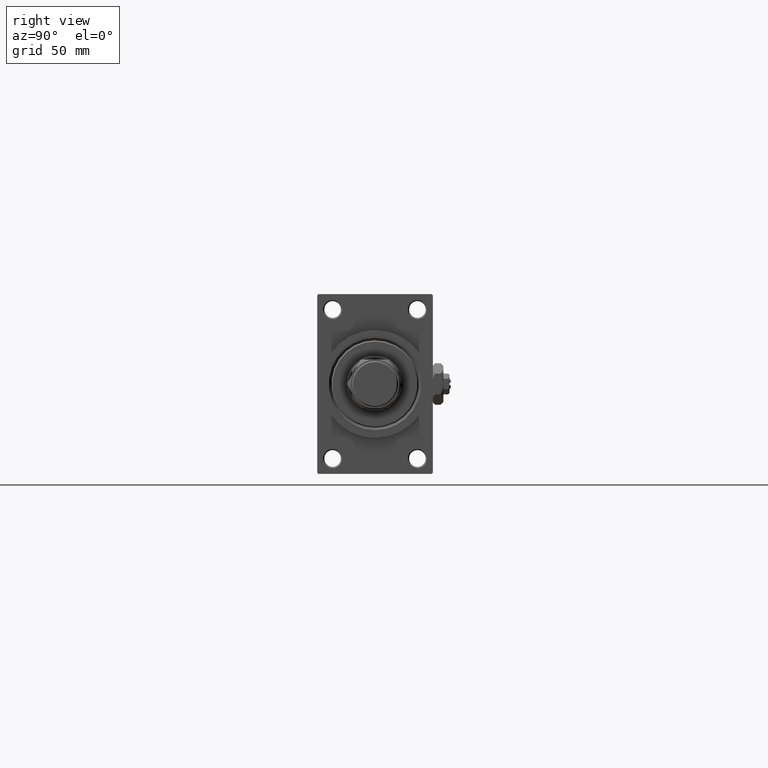
[diagram: clean part render]
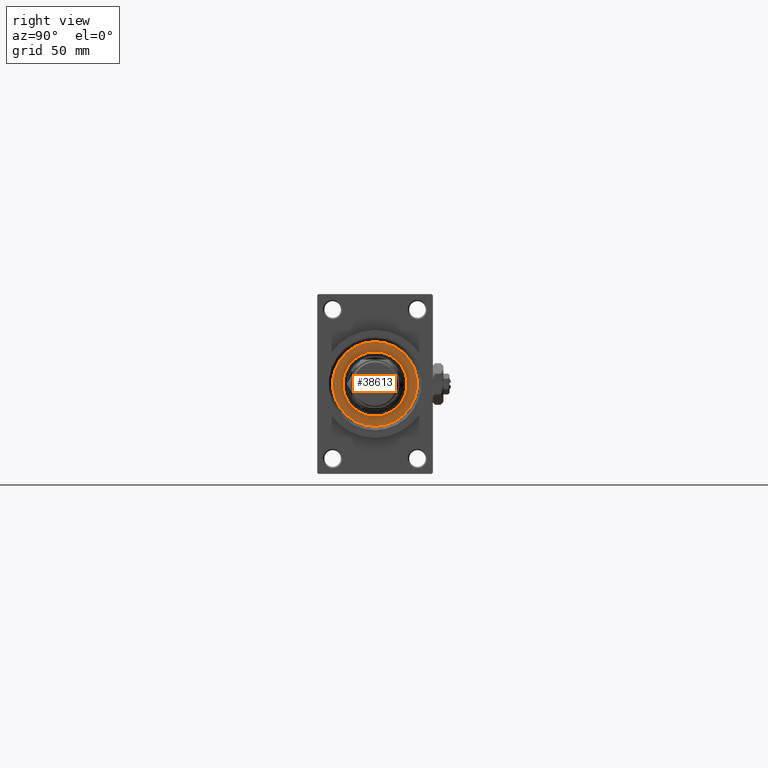
[diagram: same view with one face highlighted and labeled with its STEP entity id]
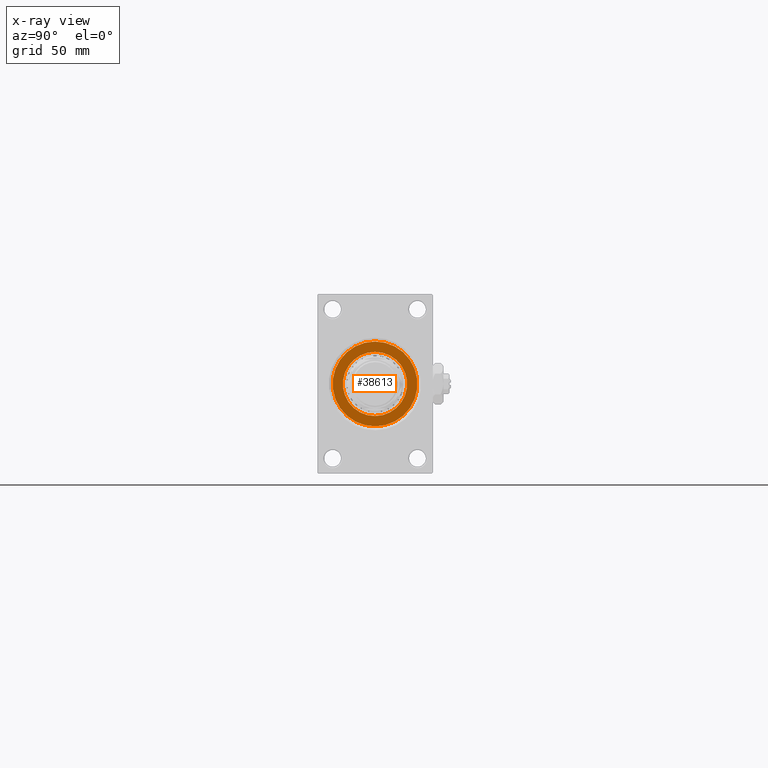
[diagram: x-ray of the same camera — body ghosted, the highlighted face saturated]
A machine part, right view. The second image highlights one B-rep face of the part: STEP entity #38613.
The next image is the same camera in x-ray: the body ghosted, the highlighted face saturated — about 0% of this face is hidden behind the body in this view.
In plain terms, the highlighted planar face has unit normal (1, -0, -0).
Its self-contained STEP definition (entity closure, byte-faithful):
#1680 = ORIENTED_EDGE ( 'NONE', *, *, #33759, .T. ) ;
#2270 = CARTESIAN_POINT ( 'NONE',  ( 0.000000000000000000, 0.000000000000000000, 55.26000000000000512 ) ) ;
#2406 = CIRCLE ( 'NONE', #13884, 12.50000000000000000 ) ;
#2655 = VERTEX_POINT ( 'NONE', #21205 ) ;
#3577 = VERTEX_POINT ( 'NONE', #11304 ) ;
#3915 = EDGE_LOOP ( 'NONE', ( #40778, #1680 ) ) ;
#4032 = PLANE ( 'NONE',  #48131 ) ;
#4676 = CARTESIAN_POINT ( 'NONE',  ( -16.50000000000001421, 0.000000000000000000, 55.26000000000000512 ) ) ;
#7151 = AXIS2_PLACEMENT_3D ( 'NONE', #24042, #39959, #31769 ) ;
#9121 = DIRECTION ( 'NONE',  ( 1.000000000000000000, 0.000000000000000000, 0.000000000000000000 ) ) ;
#11038 = DIRECTION ( 'NONE',  ( 1.000000000000000000, 0.000000000000000000, 0.000000000000000000 ) ) ;
#11304 = CARTESIAN_POINT ( 'NONE',  ( -12.50000000000000000, 1.530808498934191521E-15, 55.26000000000000512 ) ) ;
#13884 = AXIS2_PLACEMENT_3D ( 'NONE', #38279, #49341, #11038 ) ;
#15922 = EDGE_CURVE ( 'NONE', #41098, #22724, #22065, .T. ) ;
#16825 = EDGE_CURVE ( 'NONE', #3577, #2655, #2406, .T. ) ;
#21205 = CARTESIAN_POINT ( 'NONE',  ( 12.50000000000000000, 0.000000000000000000, 55.26000000000000512 ) ) ;
#22065 = CIRCLE ( 'NONE', #50785, 16.50000000000001421 ) ;
#22306 = DIRECTION ( 'NONE',  ( 0.000000000000000000, 0.000000000000000000, 1.000000000000000000 ) ) ;
#22724 = VERTEX_POINT ( 'NONE', #32749 ) ;
#22797 = CARTESIAN_POINT ( 'NONE',  ( 0.000000000000000000, 0.000000000000000000, 55.26000000000000512 ) ) ;
#24042 = CARTESIAN_POINT ( 'NONE',  ( 0.000000000000000000, 0.000000000000000000, 55.26000000000000512 ) ) ;
#26506 = EDGE_LOOP ( 'NONE', ( #31943, #46346 ) ) ;
#26663 = FACE_OUTER_BOUND ( 'NONE', #3915, .T. ) ;
#28447 = CIRCLE ( 'NONE', #7151, 12.50000000000000000 ) ;
#28899 = CARTESIAN_POINT ( 'NONE',  ( 0.000000000000000000, 0.000000000000000000, 55.26000000000000512 ) ) ;
#31769 = DIRECTION ( 'NONE',  ( 1.000000000000000000, 0.000000000000000000, 0.000000000000000000 ) ) ;
#31943 = ORIENTED_EDGE ( 'NONE', *, *, #38939, .F. ) ;
#32749 = CARTESIAN_POINT ( 'NONE',  ( 16.50000000000001421, 2.051283388571817281E-15, 55.26000000000000512 ) ) ;
#33759 = EDGE_CURVE ( 'NONE', #22724, #41098, #42202, .T. ) ;
#37294 = AXIS2_PLACEMENT_3D ( 'NONE', #2270, #22306, #49548 ) ;
#38279 = CARTESIAN_POINT ( 'NONE',  ( 0.000000000000000000, 0.000000000000000000, 55.26000000000000512 ) ) ;
#38613 = ADVANCED_FACE ( 'NONE', ( #46186, #26663 ), #4032, .T. ) ;
#38723 = DIRECTION ( 'NONE',  ( 0.000000000000000000, 0.000000000000000000, 1.000000000000000000 ) ) ;
#38939 = EDGE_CURVE ( 'NONE', #2655, #3577, #28447, .T. ) ;
#39959 = DIRECTION ( 'NONE',  ( 0.000000000000000000, 0.000000000000000000, 1.000000000000000000 ) ) ;
#40778 = ORIENTED_EDGE ( 'NONE', *, *, #15922, .T. ) ;
#41098 = VERTEX_POINT ( 'NONE', #4676 ) ;
#42202 = CIRCLE ( 'NONE', #37294, 16.50000000000001421 ) ;
#44570 = DIRECTION ( 'NONE',  ( 0.000000000000000000, 0.000000000000000000, 1.000000000000000000 ) ) ;
#46186 = FACE_BOUND ( 'NONE', #26506, .T. ) ;
#46346 = ORIENTED_EDGE ( 'NONE', *, *, #16825, .F. ) ;
#46688 = DIRECTION ( 'NONE',  ( 1.000000000000000000, 0.000000000000000000, -0.000000000000000000 ) ) ;
#48131 = AXIS2_PLACEMENT_3D ( 'NONE', #22797, #38723, #46688 ) ;
#49341 = DIRECTION ( 'NONE',  ( 0.000000000000000000, 0.000000000000000000, 1.000000000000000000 ) ) ;
#49548 = DIRECTION ( 'NONE',  ( 1.000000000000000000, 0.000000000000000000, 0.000000000000000000 ) ) ;
#50785 = AXIS2_PLACEMENT_3D ( 'NONE', #28899, #44570, #9121 ) ;